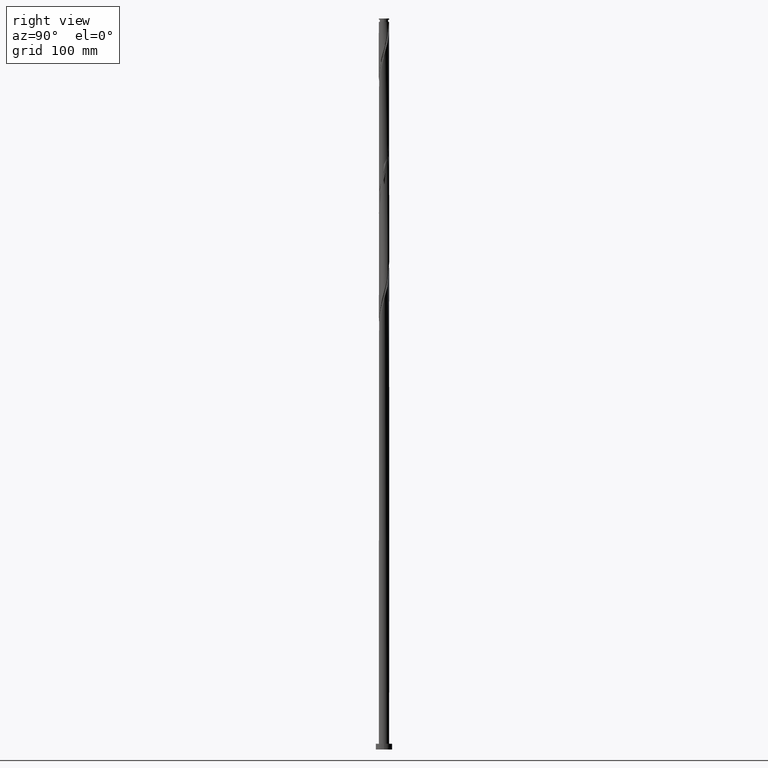
[diagram: clean part render]
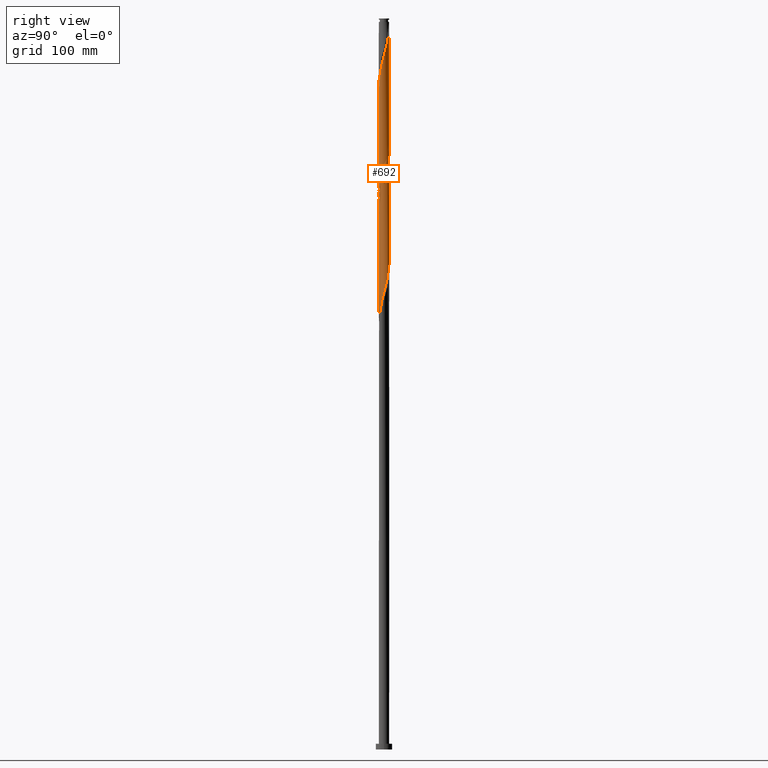
[diagram: same view with one face highlighted and labeled with its STEP entity id]
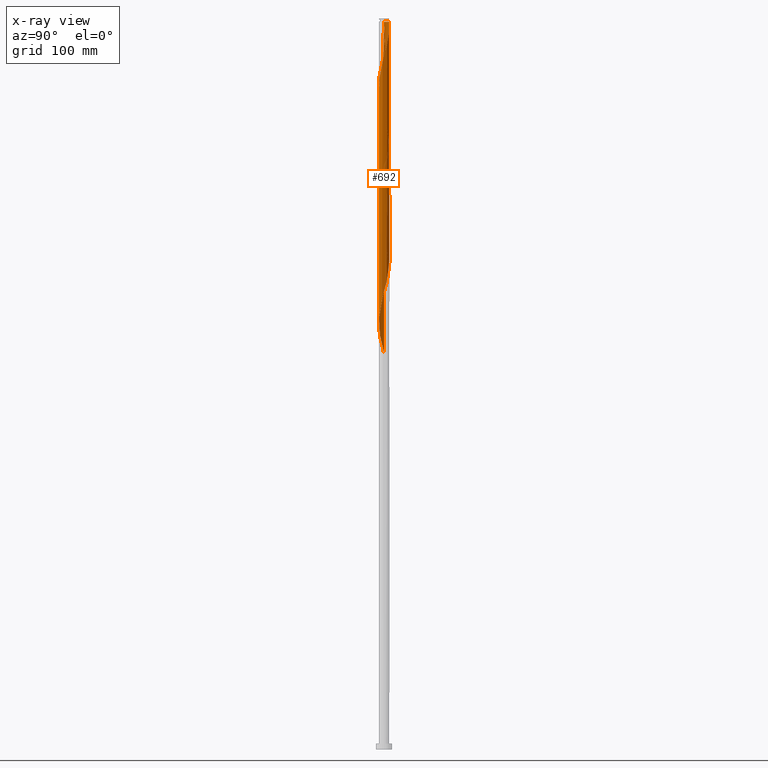
[diagram: x-ray of the same camera — body ghosted, the highlighted face saturated]
A machine part, right view. The second image highlights one B-rep face of the part: STEP entity #692.
The next image is the same camera in x-ray: the body ghosted, the highlighted face saturated — about 0% of this face is hidden behind the body in this view.
In plain terms, the highlighted cylindrical surface (bore or boss wall) has radius 4.5 mm, axis along (-0, -0, -1).
Its self-contained STEP definition (entity closure, byte-faithful):
#31 = CARTESIAN_POINT ( 'NONE',  ( 1.690576670250392599, 4.170365753984304646, 414.0181182535420703 ) ) ;
#41 = CARTESIAN_POINT ( 'NONE',  ( 1.560206006311765314, -4.220871618264250280, 478.8710594300127923 ) ) ;
#53 = CARTESIAN_POINT ( 'NONE',  ( -3.082925670266508433, -3.278043518870941142, 460.3416476653068798 ) ) ;
#65 = CARTESIAN_POINT ( 'NONE',  ( -2.779170205267875282, -3.563718652570988965, 461.8857653123656632 ) ) ;
#71 = CARTESIAN_POINT ( 'NONE',  ( 4.058908475432268403, 1.943003342267864531, 506.6651770770715757 ) ) ;
#76 = CARTESIAN_POINT ( 'NONE',  ( 3.632771918171209702, 2.655742493267495341, 404.7534123711891993 ) ) ;
#83 = VERTEX_POINT ( 'NONE', #1909 ) ;
#84 = CARTESIAN_POINT ( 'NONE',  ( -3.292086981555668590, 3.096133228787603553, 539.0916476653069367 ) ) ;
#94 = CARTESIAN_POINT ( 'NONE',  ( 4.499999999999999112, 0.1730303454945906205, 499.8479680744137568 ) ) ;
#95 = CARTESIAN_POINT ( 'NONE',  ( -3.548516457065029606, -2.767314755126113024, 556.0769417829541226 ) ) ;
#100 = CARTESIAN_POINT ( 'NONE',  ( 2.779170205267879279, -3.563718652570996515, 582.3269417829541226 ) ) ;
#101 = VERTEX_POINT ( 'NONE', #1543 ) ;
#109 = CARTESIAN_POINT ( 'NONE',  ( -4.428892876218122332, 0.8993250555363423437, 548.3563535476599782 ) ) ;
#110 = CARTESIAN_POINT ( 'NONE',  ( 3.386681135265150022, -2.992368385170899092, 585.4151770770720304 ) ) ;
#112 = CARTESIAN_POINT ( 'NONE',  ( -3.386681135265145581, -2.992368385170891543, 353.7975300182481533 ) ) ;
#114 = EDGE_CURVE ( 'NONE', #177, #1005, #632, .T. ) ;
#121 = ORIENTED_EDGE ( 'NONE', *, *, #114, .F. ) ;
#177 = VERTEX_POINT ( 'NONE', #1346 ) ;
#183 = CARTESIAN_POINT ( 'NONE',  ( 4.500000000000000000, 4.765459155473159646E-15, 499.2045623223540360 ) ) ;
#194 = CARTESIAN_POINT ( 'NONE',  ( -0.8954886933959659290, -4.409999999999997478, 469.6063535476599213 ) ) ;
#204 = CARTESIAN_POINT ( 'NONE',  ( -3.632771918171211478, -2.655742493267494009, 457.2534123711893130 ) ) ;
#211 = CARTESIAN_POINT ( 'NONE',  ( -4.500000000000006217, 1.762771725222034300E-15, 545.0081447729659203 ) ) ;
#214 = CARTESIAN_POINT ( 'NONE',  ( -2.428094086222673198, -3.788714704019091162, 463.4298829594246172 ) ) ;
#223 = CARTESIAN_POINT ( 'NONE',  ( -0.7580574095480138164, 4.435690359327320920, 423.2828241358951686 ) ) ;
#234 = CARTESIAN_POINT ( 'NONE',  ( 2.428094086222673642, 3.788714704019090718, 410.9298829594244467 ) ) ;
#235 = VERTEX_POINT ( 'NONE', #2022 ) ;
#240 = CARTESIAN_POINT ( 'NONE',  ( -1.169084651843906419, -4.365445995697824877, 566.8857653123659475 ) ) ;
#242 = CARTESIAN_POINT ( 'NONE',  ( 1.169084651843902423, -4.365445995697815995, 372.3269417829539520 ) ) ;
#255 = CARTESIAN_POINT ( 'NONE',  ( -2.779170205267875282, -3.563718652570988965, 356.8857653123657201 ) ) ;
#261 = CARTESIAN_POINT ( 'NONE',  ( -2.309223658791419442, 3.862316156618713858, 534.4592947241303591 ) ) ;
#268 = CARTESIAN_POINT ( 'NONE',  ( 1.304135373323316749, 4.327020752501417711, 520.5622359006009674 ) ) ;
#269 = CARTESIAN_POINT ( 'NONE',  ( 4.454693295585993695, -0.7613050024742795685, 594.6798829594246172 ) ) ;
#278 = CARTESIAN_POINT ( 'NONE',  ( 3.878862701077282704, -2.319116601364103136, 588.5034123711891425 ) ) ;
#295 = CARTESIAN_POINT ( 'NONE',  ( 0.000000000000000000, 0.000000000000000000, 630.0000000000000000 ) ) ;
#304 = ORIENTED_EDGE ( 'NONE', *, *, #1848, .T. ) ;
#307 = CARTESIAN_POINT ( 'NONE',  ( 2.979603469179439745, -3.372234150597171798, 485.0475300182480396 ) ) ;
#357 = CARTESIAN_POINT ( 'NONE',  ( 1.169084651843902423, -4.365445995697815995, 477.3269417829540657 ) ) ;
#363 = CARTESIAN_POINT ( 'NONE',  ( -4.473812990118687161, -0.4847652312669868957, 546.8122359006009674 ) ) ;
#366 = CARTESIAN_POINT ( 'NONE',  ( 2.667119956803213121, -3.648335072406740043, 483.5034123711893130 ) ) ;
#378 = CARTESIAN_POINT ( 'NONE',  ( -3.996588972981646393, 2.068157774697445550, 438.7240006064833437 ) ) ;
#385 =( BOUNDED_CURVE ( )  B_SPLINE_CURVE ( 2, ( #211, #1004, #363, #850, #862, #704, #1326, #1968, #95, #565, #1696, #419, #1059, #1675, #600, #240, #910, #1862, #1852, #1997, #1378, #441, #1228, #885, #1667, #100, #1185, #110, #1216, #278, #2023, #903, #1824, #269, #1842, #892, #575, #1536, #429, #1544, #1044, #410, #750, #1518, #399, #1370, #734, #761, #1389, #742, #1362, #1195, #1685, #2014, #1834 ),
 .UNSPECIFIED., .F., .T. ) 
 B_SPLINE_CURVE_WITH_KNOTS ( ( 3, 2, 2, 2, 2, 2, 2, 2, 2, 2, 2, 2, 2, 2, 2, 2, 2, 2, 2, 2, 2, 2, 2, 2, 2, 2, 2, 3 ),
 ( 0.5545293573162898282, 0.5588235294117647189, 0.5661764705882352811, 0.5735294117647058432, 0.5808823529411765163, 0.5882352941176471894, 0.5955882352941177516, 0.6029411764705884247, 0.6102941176470589868, 0.6176470588235295489, 0.6250000000000001110, 0.6323529411764707842, 0.6397058823529413463, 0.6470588235294119084, 0.6544117647058825815, 0.6617647058823531436, 0.6691176470588238168, 0.6764705882352943789, 0.6838235294117649410, 0.6911764705882356141, 0.6985294117647061762, 0.7058823529411767383, 0.7132352941176474115, 0.7205882352941179736, 0.7279411764705887578, 0.7352941176470593199, 0.7426470588235298820, 0.7500000000000004441 ),
 .UNSPECIFIED. ) 
 CURVE ( )  GEOMETRIC_REPRESENTATION_ITEM ( )  RATIONAL_B_SPLINE_CURVE ( ( 0.9072066346053333508, 0.9068261157890998847, 0.9090909090909716772, 0.9052128875410025977, 0.9090909090909716772, 0.9052128875410025977, 0.9090909090909716772, 0.9052128875410025977, 0.9090909090909716772, 0.9052128875410025977, 0.9090909090909716772, 0.9052128875410025977, 0.9090909090909716772, 0.9052128875410025977, 0.9090909090909716772, 0.9052128875410025977, 0.9090909090909716772, 0.9052128875410025977, 0.9090909090909716772, 0.9052128875410025977, 0.9090909090909716772, 0.9052128875410025977, 0.9090909090909716772, 0.9052128875410025977, 0.9090909090909716772, 0.9052128875410025977, 0.9090909090909716772, 0.9052128875410025977, 0.9090909090909716772, 0.9052128875410025977, 0.9090909090909716772, 0.9052128875410025977, 0.9090909090909716772, 0.9052128875410025977, 0.9090909090909716772, 0.9052128875410025977, 0.9090909090909716772, 0.9052128875410025977, 0.9090909090909716772, 0.9052128875410025977, 0.9090909090909716772, 0.9052128875410025977, 0.9090909090909716772, 0.9052128875410025977, 0.9090909090909716772, 0.9052128875410025977, 0.9090909090909716772, 0.9052128875410025977, 0.9090909090909716772, 0.9052128875410025977, 0.9090909090909716772, 0.9052128875410025977, 0.9090909090909716772, 0.9052128875410022646, 0.9090909090909720103 ) ) 
 REPRESENTATION_ITEM ( '' )  );
#390 = CARTESIAN_POINT ( 'NONE',  ( -1.560206006311764870, 4.220871618264250280, 426.3710594300129060 ) ) ;
#398 = CARTESIAN_POINT ( 'NONE',  ( 4.238954249787256323, 1.566890083171634585, 505.1210594300127354 ) ) ;
#399 = CARTESIAN_POINT ( 'NONE',  ( 2.979603469179447295, 3.372234150597175351, 611.6651770770716894 ) ) ;
#404 = CARTESIAN_POINT ( 'NONE',  ( 4.518733104019242219, -0.07020540699763129500, 393.9445888417775450 ) ) ;
#409 = CARTESIAN_POINT ( 'NONE',  ( -4.308562444803517799, 1.298572161733310137, 546.8122359006007400 ) ) ;
#410 = CARTESIAN_POINT ( 'NONE',  ( 3.804945932574387957, 2.438496281464617610, 607.0328241358954529 ) ) ;
#413 = CARTESIAN_POINT ( 'NONE',  ( -4.499999999999998224, -0.1730303454945718578, 342.3479680744136999 ) ) ;
#419 = CARTESIAN_POINT ( 'NONE',  ( -2.667119956803218006, -3.648335072406747148, 560.7092947241307002 ) ) ;
#422 = DIRECTION ( 'NONE',  ( -0.000000000000000000, -0.000000000000000000, -1.000000000000000000 ) ) ;
#428 = CARTESIAN_POINT ( 'NONE',  ( -0.3470301672521248770, 4.505934722956829397, 526.7387064888363284 ) ) ;
#429 = CARTESIAN_POINT ( 'NONE',  ( 4.308562444803525793, 1.298572161733309693, 602.4004711947187616 ) ) ;
#441 = CARTESIAN_POINT ( 'NONE',  ( 1.304135373323318303, -4.327020752501423040, 576.1504711947189890 ) ) ;
#446 = VERTEX_POINT ( 'NONE', #1706 ) ;
#458 = LINE ( 'NONE', #1381, #1963 ) ;
#473 = CARTESIAN_POINT ( 'NONE',  ( 4.500000000000001776, -0.2430899265566714984, 498.3006430903412820 ) ) ;
#525 = CARTESIAN_POINT ( 'NONE',  ( 4.308562444803518687, -1.298572161733309471, 389.3122359006009674 ) ) ;
#535 = CARTESIAN_POINT ( 'NONE',  ( -4.428892876218122332, 0.8993250555363423437, 443.3563535476599782 ) ) ;
#547 = CARTESIAN_POINT ( 'NONE',  ( -4.346823772686619236, -1.164097542822954967, 451.0769417829539520 ) ) ;
#557 = CARTESIAN_POINT ( 'NONE',  ( 2.077017967177472890, 4.013710755467192470, 412.4740006064834006 ) ) ;
#564 = CARTESIAN_POINT ( 'NONE',  ( -4.499999999999999112, -1.299670678765407391E-15, 551.7045623223539224 ) ) ;
#565 = CARTESIAN_POINT ( 'NONE',  ( -3.292086981555674363, -3.096133228787609770, 557.6210594300127923 ) ) ;
#567 = CARTESIAN_POINT ( 'NONE',  ( 4.454693295585983037, 0.7613050024742757937, 397.0328241358952255 ) ) ;
#574 = CARTESIAN_POINT ( 'NONE',  ( 4.500000000000000000, 4.765459155473158857E-15, 499.2045623223540360 ) ) ;
#575 = CARTESIAN_POINT ( 'NONE',  ( 4.473812990118688049, 0.4847652312669875063, 599.3122359006010811 ) ) ;
#587 = CARTESIAN_POINT ( 'NONE',  ( -2.428094086222673198, -3.788714704019091162, 358.4298829594245035 ) ) ;
#591 = CARTESIAN_POINT ( 'NONE',  ( -1.560206006311764870, 4.220871618264250280, 531.3710594300127923 ) ) ;
#594 = CARTESIAN_POINT ( 'NONE',  ( -0.8954886933959659290, -4.409999999999997478, 364.6063535476598645 ) ) ;
#600 = CARTESIAN_POINT ( 'NONE',  ( -1.560206006311768201, -4.220871618264257386, 565.3416476653068230 ) ) ;
#604 = CARTESIAN_POINT ( 'NONE',  ( -4.346823772686619236, -1.164097542822954967, 346.0769417829539520 ) ) ;
#607 =( BOUNDED_CURVE ( )  B_SPLINE_CURVE ( 2, ( #1134, #473, #1773, #988, #1621, #2049, #789, #1418, #1098, #1735, #307, #366, #1177, #1794, #41, #357, #1328, #1816, #1007, #1641, #194, #1970, #708, #1827, #214, #65, #53, #845, #204, #854, #835, #1978, #547, #1481, #1804, #1167, #696, #535, #682, #1490, #378, #1468, #1154, #1318, #997, #716, #1961, #1015, #390, #1651, #223, #1629, #867, #1029, #1500, #1340, #31, #557, #234, #1660, #877, #1510, #76, #726, #1351, #1988, #1310, #567, #1190, #404, #1040, #1951, #525, #1144, #1782, #1548, #1678, #1064, #1365, #738, #1690, #2000, #1856, #242, #1865, #913, #2037, #1711, #594, #1520, #2025, #1540, #587, #255, #1219, #112, #1393, #745, #906, #926, #604, #888, #1054, #413, #764 ),
 .UNSPECIFIED., .F., .T. ) 
 B_SPLINE_CURVE_WITH_KNOTS ( ( 3, 2, 2, 2, 2, 2, 2, 2, 2, 2, 2, 2, 2, 2, 2, 2, 2, 2, 2, 2, 2, 2, 2, 2, 2, 2, 2, 2, 2, 2, 2, 2, 2, 2, 2, 2, 2, 2, 2, 2, 2, 2, 2, 2, 2, 2, 2, 2, 2, 2, 2, 2, 3 ),
 ( 0.5545293573162900502, 0.5588235294117647189, 0.5661764705882352811, 0.5735294117647058432, 0.5808823529411765163, 0.5882352941176470784, 0.5955882352941176405, 0.6029411764705882026, 0.6102941176470588758, 0.6176470588235294379, 0.6250000000000000000, 0.6323529411764705621, 0.6397058823529411242, 0.6470588235294117974, 0.6544117647058823595, 0.6617647058823529216, 0.6691176470588234837, 0.6764705882352941568, 0.6838235294117647189, 0.6911764705882352811, 0.6985294117647058432, 0.7058823529411765163, 0.7132352941176470784, 0.7205882352941176405, 0.7279411764705882026, 0.7352941176470588758, 0.7426470588235294379, 0.7500000000000000000, 0.7573529411764705621, 0.7647058823529411242, 0.7720588235294117974, 0.7794117647058823595, 0.7867647058823529216, 0.7941176470588234837, 0.8014705882352941568, 0.8088235294117647189, 0.8161764705882352811, 0.8235294117647058432, 0.8308823529411765163, 0.8382352941176470784, 0.8455882352941176405, 0.8529411764705882026, 0.8602941176470588758, 0.8676470588235294379, 0.8750000000000000000, 0.8823529411764705621, 0.8897058823529411242, 0.8970588235294117974, 0.9044117647058823595, 0.9117647058823529216, 0.9191176470588233727, 0.9264705882352941568, 0.9295293573162903833 ),
 .UNSPECIFIED. ) 
 CURVE ( )  GEOMETRIC_REPRESENTATION_ITEM ( )  RATIONAL_B_SPLINE_CURVE ( ( 0.9072066346053269115, 0.9068261157890937785, 0.9090909090909653489, 0.9052128875409962694, 0.9090909090909653489, 0.9052128875409962694, 0.9090909090909653489, 0.9052128875409962694, 0.9090909090909653489, 0.9052128875409962694, 0.9090909090909653489, 0.9052128875409962694, 0.9090909090909653489, 0.9052128875409962694, 0.9090909090909653489, 0.9052128875409962694, 0.9090909090909653489, 0.9052128875409962694, 0.9090909090909653489, 0.9052128875409962694, 0.9090909090909653489, 0.9052128875409962694, 0.9090909090909653489, 0.9052128875409962694, 0.9090909090909653489, 0.9052128875409962694, 0.9090909090909653489, 0.9052128875409962694, 0.9090909090909653489, 0.9052128875409962694, 0.9090909090909653489, 0.9052128875409962694, 0.9090909090909653489, 0.9052128875409962694, 0.9090909090909653489, 0.9052128875409962694, 0.9090909090909653489, 0.9052128875409962694, 0.9090909090909653489, 0.9052128875409962694, 0.9090909090909653489, 0.9052128875409962694, 0.9090909090909653489, 0.9052128875409962694, 0.9090909090909653489, 0.9052128875409962694, 0.9090909090909653489, 0.9052128875409962694, 0.9090909090909653489, 0.9052128875409962694, 0.9090909090909653489, 0.9052128875409962694, 0.9090909090909653489, 0.9052128875409962694, 0.9090909090909653489, 0.9052128875409962694, 0.9090909090909653489, 0.9052128875409962694, 0.9090909090909653489, 0.9052128875409962694, 0.9090909090909653489, 0.9052128875409962694, 0.9090909090909653489, 0.9052128875409962694, 0.9090909090909653489, 0.9052128875409962694, 0.9090909090909653489, 0.9052128875409962694, 0.9090909090909653489, 0.9052128875409962694, 0.9090909090909653489, 0.9052128875409962694, 0.9090909090909653489, 0.9052128875409962694, 0.9090909090909653489, 0.9052128875409962694, 0.9090909090909653489, 0.9052128875409962694, 0.9090909090909653489, 0.9052128875409962694, 0.9090909090909653489, 0.9052128875409962694, 0.9090909090909653489, 0.9052128875409962694, 0.9090909090909653489, 0.9052128875409962694, 0.9090909090909653489, 0.9052128875409962694, 0.9090909090909653489, 0.9052128875409962694, 0.9090909090909653489, 0.9052128875409962694, 0.9090909090909653489, 0.9052128875409962694, 0.9090909090909653489, 0.9052128875409962694, 0.9090909090909653489, 0.9052128875409962694, 0.9090909090909653489, 0.9052128875409962694, 0.9090909090909653489, 0.9052128875409962694, 0.9090909090909653489, 0.9074776808428677288, 0.9072066346053268004 ) ) 
 REPRESENTATION_ITEM ( '' )  );
#615 = LINE ( 'NONE', #1074, #1656 ) ;
#629 = CARTESIAN_POINT ( 'NONE',  ( 0.000000000000000000, 0.000000000000000000, 627.1063535476598645 ) ) ;
#632 =( BOUNDED_CURVE ( )  B_SPLINE_CURVE ( 2, ( #564, #874, #1058, #109, #409, #2012, #1684, #1215, #1361, #84, #2004, #1695, #261, #902, #591, #1535, #1505, #428, #1517, #1043, #760, #268, #1052, #1204, #1184, #884, #733, #891, #1996, #909, #71, #398, #1388, #1674, #1841, #94, #574 ),
 .UNSPECIFIED., .F., .T. ) 
 B_SPLINE_CURVE_WITH_KNOTS ( ( 3, 2, 2, 2, 2, 2, 2, 2, 2, 2, 2, 2, 2, 2, 2, 2, 2, 2, 3 ),
 ( 0.4295293573162903833, 0.4338235294117647189, 0.4411764705882352811, 0.4485294117647058987, 0.4558823529411764608, 0.4632352941176470784, 0.4705882352941176405, 0.4779411764705882582, 0.4852941176470588203, 0.4926470588235294379, 0.5000000000000000000, 0.5073529411764705621, 0.5147058823529411242, 0.5220588235294117974, 0.5294117647058823595, 0.5367647058823529216, 0.5441176470588234837, 0.5514705882352941568, 0.5545293573162900502 ),
 .UNSPECIFIED. ) 
 CURVE ( )  GEOMETRIC_REPRESENTATION_ITEM ( )  RATIONAL_B_SPLINE_CURVE ( ( 0.9072066346053269115, 0.9068261157890938895, 0.9090909090909653489, 0.9052128875409962694, 0.9090909090909653489, 0.9052128875409962694, 0.9090909090909653489, 0.9052128875409962694, 0.9090909090909653489, 0.9052128875409962694, 0.9090909090909653489, 0.9052128875409962694, 0.9090909090909653489, 0.9052128875409962694, 0.9090909090909653489, 0.9052128875409962694, 0.9090909090909653489, 0.9052128875409962694, 0.9090909090909653489, 0.9052128875409962694, 0.9090909090909653489, 0.9052128875409962694, 0.9090909090909653489, 0.9052128875409962694, 0.9090909090909653489, 0.9052128875409962694, 0.9090909090909653489, 0.9052128875409962694, 0.9090909090909653489, 0.9052128875409962694, 0.9090909090909653489, 0.9052128875409962694, 0.9090909090909653489, 0.9052128875409962694, 0.9090909090909653489, 0.9074776808428678398, 0.9072066346053269115 ) ) 
 REPRESENTATION_ITEM ( '' )  );
#682 = CARTESIAN_POINT ( 'NONE',  ( -4.308562444803517799, 1.298572161733310137, 441.8122359006010242 ) ) ;
#692 = ADVANCED_FACE ( 'NONE', ( #1725 ), #732, .T. ) ;
#696 = CARTESIAN_POINT ( 'NONE',  ( -4.473812990118680055, 0.4847652312669873398, 444.9004711947185911 ) ) ;
#704 = CARTESIAN_POINT ( 'NONE',  ( -4.188232013388924813, -1.697819267930281040, 551.4445888417776587 ) ) ;
#708 = CARTESIAN_POINT ( 'NONE',  ( -1.690576670250394153, -4.170365753984304646, 466.5181182535422408 ) ) ;
#716 = CARTESIAN_POINT ( 'NONE',  ( -2.667119956803212677, 3.648335072406740931, 431.0034123711893699 ) ) ;
#726 = CARTESIAN_POINT ( 'NONE',  ( 3.878862701077275155, 2.319116601364099584, 403.2092947241305865 ) ) ;
#732 = CYLINDRICAL_SURFACE ( 'NONE', #1590, 4.500000000000000000 ) ;
#733 = CARTESIAN_POINT ( 'NONE',  ( 3.082925670266510654, 3.278043518870938478, 512.8416476653069367 ) ) ;
#734 = CARTESIAN_POINT ( 'NONE',  ( 2.309223658791424327, 3.862316156618720964, 614.7534123711892562 ) ) ;
#738 = CARTESIAN_POINT ( 'NONE',  ( 2.667119956803213121, -3.648335072406740043, 378.5034123711893130 ) ) ;
#742 = CARTESIAN_POINT ( 'NONE',  ( 1.169084651843904865, 4.365445995697824877, 619.3857653123656064 ) ) ;
#745 = CARTESIAN_POINT ( 'NONE',  ( -3.878862701077276487, -2.319116601364098251, 350.7092947241305296 ) ) ;
#750 = CARTESIAN_POINT ( 'NONE',  ( 3.548516457065029606, 2.767314755126114356, 608.5769417829541226 ) ) ;
#760 = CARTESIAN_POINT ( 'NONE',  ( 0.8954886933959665951, 4.409999999999997478, 522.1063535476598645 ) ) ;
#761 = CARTESIAN_POINT ( 'NONE',  ( 1.951327360779632869, 4.076297240830694335, 616.2975300182481533 ) ) ;
#762 = ORIENTED_EDGE ( 'NONE', *, *, #1904, .F. ) ;
#764 = CARTESIAN_POINT ( 'NONE',  ( -4.500000000000000000, -4.989540306984437354E-15, 341.7045623223539792 ) ) ;
#772 = VECTOR ( 'NONE', #1476, 1000.000000000000000 ) ;
#789 = CARTESIAN_POINT ( 'NONE',  ( 3.996588972981645504, -2.068157774697447771, 491.2240006064832869 ) ) ;
#824 = DIRECTION ( 'NONE',  ( -0.000000000000000000, -0.000000000000000000, -1.000000000000000000 ) ) ;
#835 = CARTESIAN_POINT ( 'NONE',  ( -4.058908475432268403, -1.943003342267865197, 454.1651770770715189 ) ) ;
#845 = CARTESIAN_POINT ( 'NONE',  ( -3.386681135265145581, -2.992368385170891543, 458.7975300182480396 ) ) ;
#850 = CARTESIAN_POINT ( 'NONE',  ( -4.428892876218131214, -0.8993250555363426768, 548.3563535476600919 ) ) ;
#854 = CARTESIAN_POINT ( 'NONE',  ( -3.878862701077276487, -2.319116601364098251, 455.7092947241305865 ) ) ;
#862 = CARTESIAN_POINT ( 'NONE',  ( -4.308562444803525793, -1.298572161733311026, 549.9004711947187616 ) ) ;
#867 = CARTESIAN_POINT ( 'NONE',  ( 0.06990592310824471356, 4.499456985227704209, 420.1945888417775450 ) ) ;
#874 = CARTESIAN_POINT ( 'NONE',  ( -4.500000000000000000, 0.2430899265566916767, 550.8006430903411683 ) ) ;
#877 = CARTESIAN_POINT ( 'NONE',  ( 3.082925670266510654, 3.278043518870938478, 407.8416476653068230 ) ) ;
#884 = CARTESIAN_POINT ( 'NONE',  ( 2.779170205267873950, 3.563718652570990297, 514.3857653123658338 ) ) ;
#885 = CARTESIAN_POINT ( 'NONE',  ( 2.077017967177474667, -4.013710755467202240, 579.2387064888364421 ) ) ;
#888 = CARTESIAN_POINT ( 'NONE',  ( -4.454693295585984814, -0.7613050024742772370, 344.5328241358952823 ) ) ;
#891 = CARTESIAN_POINT ( 'NONE',  ( 3.386681135265146025, 2.992368385170890654, 511.2975300182480964 ) ) ;
#892 = CARTESIAN_POINT ( 'NONE',  ( 4.518733104019251101, 0.07020540699763319625, 597.7681182535424114 ) ) ;
#902 = CARTESIAN_POINT ( 'NONE',  ( -1.951327360779627762, 4.076297240830688118, 532.9151770770716894 ) ) ;
#903 = CARTESIAN_POINT ( 'NONE',  ( 4.238954249787265205, -1.566890083171638803, 591.5916476653070504 ) ) ;
#906 = CARTESIAN_POINT ( 'NONE',  ( -4.058908475432268403, -1.943003342267865197, 349.1651770770715757 ) ) ;
#909 = CARTESIAN_POINT ( 'NONE',  ( 3.878862701077275155, 2.319116601364099584, 508.2092947241303591 ) ) ;
#910 = CARTESIAN_POINT ( 'NONE',  ( -0.7580574095480158148, -4.435690359327330690, 568.4298829594246172 ) ) ;
#913 = CARTESIAN_POINT ( 'NONE',  ( 0.3470301672521248770, -4.505934722956829397, 369.2387064888362715 ) ) ;
#926 = CARTESIAN_POINT ( 'NONE',  ( -4.238954249787257211, -1.566890083171635029, 347.6210594300128491 ) ) ;
#988 = CARTESIAN_POINT ( 'NONE',  ( 4.428892876218122332, -0.8993250555363428989, 495.8563535476599213 ) ) ;
#997 = CARTESIAN_POINT ( 'NONE',  ( -2.979603469179440189, 3.372234150597171354, 432.5475300182480396 ) ) ;
#1004 = CARTESIAN_POINT ( 'NONE',  ( -4.500000000000010658, -0.2430899265566582312, 545.9120640049785607 ) ) ;
#1005 = VERTEX_POINT ( 'NONE', #183 ) ;
#1007 = CARTESIAN_POINT ( 'NONE',  ( -0.06990592310824564337, -4.499456985227704209, 472.6945888417773745 ) ) ;
#1011 = EDGE_CURVE ( 'NONE', #101, #83, #1324, .T. ) ;
#1015 = CARTESIAN_POINT ( 'NONE',  ( -1.951327360779627762, 4.076297240830688118, 427.9151770770716325 ) ) ;
#1029 = CARTESIAN_POINT ( 'NONE',  ( 0.4868420134686145540, 4.492979247498578133, 418.6504711947186479 ) ) ;
#1040 = CARTESIAN_POINT ( 'NONE',  ( 4.473812990118680055, -0.4847652312669890051, 392.4004711947187047 ) ) ;
#1043 = CARTESIAN_POINT ( 'NONE',  ( 0.4868420134686145540, 4.492979247498578133, 523.6504711947186479 ) ) ;
#1044 = CARTESIAN_POINT ( 'NONE',  ( 3.996588972981654386, 2.068157774697448659, 605.4887064888364421 ) ) ;
#1046 = DIRECTION ( 'NONE',  ( -0.000000000000000000, -0.000000000000000000, -1.000000000000000000 ) ) ;
#1052 = CARTESIAN_POINT ( 'NONE',  ( 1.690576670250392599, 4.170365753984304646, 519.0181182535422977 ) ) ;
#1054 = CARTESIAN_POINT ( 'NONE',  ( -4.486713199802609964, -0.3455497977383226726, 342.9887064888362147 ) ) ;
#1058 = CARTESIAN_POINT ( 'NONE',  ( -4.473812990118680055, 0.4847652312669873398, 549.9004711947185342 ) ) ;
#1059 = CARTESIAN_POINT ( 'NONE',  ( -2.309223658791425660, -3.862316156618718743, 562.2534123711892562 ) ) ;
#1064 = CARTESIAN_POINT ( 'NONE',  ( 3.292086981555668590, -3.096133228787604441, 381.5916476653069367 ) ) ;
#1074 = CARTESIAN_POINT ( 'NONE',  ( 4.500000000000000000, 5.510910596163088569E-16, 630.0000000000000000 ) ) ;
#1098 = CARTESIAN_POINT ( 'NONE',  ( 3.548516457065025165, -2.767314755126107695, 488.1357653123656064 ) ) ;
#1134 = CARTESIAN_POINT ( 'NONE',  ( 4.500000000000000000, 4.765459155473158857E-15, 499.2045623223540360 ) ) ;
#1144 = CARTESIAN_POINT ( 'NONE',  ( 4.188232013388916819, -1.697819267930276821, 387.7681182535422408 ) ) ;
#1154 = CARTESIAN_POINT ( 'NONE',  ( -3.548516457065023832, 2.767314755126108583, 435.6357653123657769 ) ) ;
#1164 = ORIENTED_EDGE ( 'NONE', *, *, #1331, .F. ) ;
#1167 = CARTESIAN_POINT ( 'NONE',  ( -4.518733104019242219, 0.07020540699763173909, 446.4445888417774881 ) ) ;
#1177 = CARTESIAN_POINT ( 'NONE',  ( 2.309223658791419442, -3.862316156618713858, 481.9592947241304159 ) ) ;
#1184 = CARTESIAN_POINT ( 'NONE',  ( 2.428094086222673642, 3.788714704019090718, 515.9298829594243898 ) ) ;
#1185 = CARTESIAN_POINT ( 'NONE',  ( 3.082925670266514651, -3.278043518870946027, 583.8710594300129060 ) ) ;
#1190 = CARTESIAN_POINT ( 'NONE',  ( 4.486713199802609964, 0.3455497977383223396, 395.4887064888363852 ) ) ;
#1193 = DIRECTION ( 'NONE',  ( -0.000000000000000000, -0.000000000000000000, -1.000000000000000000 ) ) ;
#1195 = CARTESIAN_POINT ( 'NONE',  ( 0.3470301672521278191, 4.505934722956835614, 622.4740006064832869 ) ) ;
#1198 = EDGE_CURVE ( 'NONE', #1005, #1507, #607, .T. ) ;
#1204 = CARTESIAN_POINT ( 'NONE',  ( 2.077017967177472890, 4.013710755467192470, 517.4740006064835143 ) ) ;
#1215 = CARTESIAN_POINT ( 'NONE',  ( -3.804945932574380407, 2.438496281464615389, 542.1798829594246172 ) ) ;
#1216 = CARTESIAN_POINT ( 'NONE',  ( 3.632771918171216807, -2.655742493267499782, 586.9592947241305865 ) ) ;
#1219 = CARTESIAN_POINT ( 'NONE',  ( -3.082925670266508433, -3.278043518870941142, 355.3416476653068798 ) ) ;
#1221 = AXIS2_PLACEMENT_3D ( 'NONE', #629, #824, #1299 ) ;
#1228 = CARTESIAN_POINT ( 'NONE',  ( 1.690576670250395930, -4.170365753984312640, 577.6945888417775450 ) ) ;
#1299 = DIRECTION ( 'NONE',  ( -1.000000000000000000, 0.000000000000000000, 0.000000000000000000 ) ) ;
#1310 = CARTESIAN_POINT ( 'NONE',  ( 4.346823772686621012, 1.164097542822956743, 398.5769417829539520 ) ) ;
#1318 = CARTESIAN_POINT ( 'NONE',  ( -3.292086981555668590, 3.096133228787603553, 434.0916476653068798 ) ) ;
#1324 = CIRCLE ( 'NONE', #1221, 4.499999999999936051 ) ;
#1326 = CARTESIAN_POINT ( 'NONE',  ( -3.996588972981654386, -2.068157774697449991, 552.9887064888362147 ) ) ;
#1328 = CARTESIAN_POINT ( 'NONE',  ( 0.7580574095480144825, -4.435690359327320920, 475.7828241358951118 ) ) ;
#1331 = EDGE_CURVE ( 'NONE', #446, #1005, #615, .T. ) ;
#1340 = CARTESIAN_POINT ( 'NONE',  ( 1.304135373323316749, 4.327020752501417711, 415.5622359006010242 ) ) ;
#1346 = CARTESIAN_POINT ( 'NONE',  ( -4.499999999999999112, -1.299670678765407194E-15, 551.7045623223539224 ) ) ;
#1347 = CARTESIAN_POINT ( 'NONE',  ( -4.500000000000000000, 0.000000000000000000, 630.0000000000000000 ) ) ;
#1351 = CARTESIAN_POINT ( 'NONE',  ( 4.058908475432268403, 1.943003342267864531, 401.6651770770715757 ) ) ;
#1361 = CARTESIAN_POINT ( 'NONE',  ( -3.548516457065023832, 2.767314755126108583, 540.6357653123657201 ) ) ;
#1362 = CARTESIAN_POINT ( 'NONE',  ( 0.7580574095480161478, 4.435690359327330690, 620.9298829594247309 ) ) ;
#1365 = CARTESIAN_POINT ( 'NONE',  ( 2.979603469179439745, -3.372234150597171798, 380.0475300182480964 ) ) ;
#1370 = CARTESIAN_POINT ( 'NONE',  ( 2.667119956803216674, 3.648335072406747592, 613.2092947241307002 ) ) ;
#1371 = EDGE_LOOP ( 'NONE', ( #1998, #1496, #762, #304, #1522, #1164, #1867, #121 ) ) ;
#1378 = CARTESIAN_POINT ( 'NONE',  ( 0.8954886933959658180, -4.410000000000003695, 574.6063535476598645 ) ) ;
#1381 = CARTESIAN_POINT ( 'NONE',  ( -4.500000000000000000, 0.000000000000000000, 630.0000000000000000 ) ) ;
#1388 = CARTESIAN_POINT ( 'NONE',  ( 4.346823772686621012, 1.164097542822956743, 503.5769417829538952 ) ) ;
#1389 = CARTESIAN_POINT ( 'NONE',  ( 1.560206006311770421, 4.220871618264257386, 617.8416476653069367 ) ) ;
#1393 = CARTESIAN_POINT ( 'NONE',  ( -3.632771918171211478, -2.655742493267494009, 352.2534123711892562 ) ) ;
#1418 = CARTESIAN_POINT ( 'NONE',  ( 3.804945932574380407, -2.438496281464615389, 489.6798829594245603 ) ) ;
#1425 = EDGE_CURVE ( 'NONE', #101, #177, #458, .T. ) ;
#1468 = CARTESIAN_POINT ( 'NONE',  ( -3.804945932574380407, 2.438496281464615389, 437.1798829594245603 ) ) ;
#1476 = DIRECTION ( 'NONE',  ( -0.000000000000000000, -0.000000000000000000, -1.000000000000000000 ) ) ;
#1481 = CARTESIAN_POINT ( 'NONE',  ( -4.454693295585984814, -0.7613050024742772370, 449.5328241358952823 ) ) ;
#1490 = CARTESIAN_POINT ( 'NONE',  ( -4.188232013388915043, 1.697819267930278375, 440.2681182535421840 ) ) ;
#1496 = ORIENTED_EDGE ( 'NONE', *, *, #1011, .T. ) ;
#1500 = CARTESIAN_POINT ( 'NONE',  ( 0.8954886933959665951, 4.409999999999997478, 417.1063535476598645 ) ) ;
#1505 = CARTESIAN_POINT ( 'NONE',  ( -0.7580574095480138164, 4.435690359327320920, 528.2828241358952255 ) ) ;
#1507 = VERTEX_POINT ( 'NONE', #1760 ) ;
#1510 = CARTESIAN_POINT ( 'NONE',  ( 3.386681135265146025, 2.992368385170890654, 406.2975300182480396 ) ) ;
#1517 = CARTESIAN_POINT ( 'NONE',  ( 0.06990592310824471356, 4.499456985227704209, 525.1945888417775450 ) ) ;
#1518 = CARTESIAN_POINT ( 'NONE',  ( 3.292086981555674363, 3.096133228787609326, 610.1210594300129060 ) ) ;
#1520 = CARTESIAN_POINT ( 'NONE',  ( -1.304135373323316083, -4.327020752501417711, 363.0622359006009674 ) ) ;
#1522 = ORIENTED_EDGE ( 'NONE', *, *, #1198, .F. ) ;
#1535 = CARTESIAN_POINT ( 'NONE',  ( -1.169084651843902867, 4.365445995697816883, 529.8269417829538952 ) ) ;
#1536 = CARTESIAN_POINT ( 'NONE',  ( 4.428892876218131214, 0.8993250555363421217, 600.8563535476600919 ) ) ;
#1540 = CARTESIAN_POINT ( 'NONE',  ( -2.077017967177472890, -4.013710755467193358, 359.9740006064834574 ) ) ;
#1543 = CARTESIAN_POINT ( 'NONE',  ( -4.499999999999936051, 0.000000000000000000, 627.1063535476598645 ) ) ;
#1544 = CARTESIAN_POINT ( 'NONE',  ( 4.188232013388924813, 1.697819267930281484, 603.9445888417775450 ) ) ;
#1548 = CARTESIAN_POINT ( 'NONE',  ( 3.804945932574380407, -2.438496281464615389, 384.6798829594246172 ) ) ;
#1590 = AXIS2_PLACEMENT_3D ( 'NONE', #295, #1193, #2027 ) ;
#1621 = CARTESIAN_POINT ( 'NONE',  ( 4.308562444803518687, -1.298572161733309471, 494.3122359006009106 ) ) ;
#1629 = CARTESIAN_POINT ( 'NONE',  ( -0.3470301672521248770, 4.505934722956829397, 421.7387064888364421 ) ) ;
#1641 = CARTESIAN_POINT ( 'NONE',  ( -0.4868420134686142209, -4.492979247498578133, 471.1504711947187047 ) ) ;
#1651 = CARTESIAN_POINT ( 'NONE',  ( -1.169084651843902867, 4.365445995697816883, 424.8269417829539520 ) ) ;
#1656 = VECTOR ( 'NONE', #1046, 1000.000000000000000 ) ;
#1660 = CARTESIAN_POINT ( 'NONE',  ( 2.779170205267873950, 3.563718652570990297, 409.3857653123658338 ) ) ;
#1667 = CARTESIAN_POINT ( 'NONE',  ( 2.428094086222677195, -3.788714704019096935, 580.7828241358953392 ) ) ;
#1674 = CARTESIAN_POINT ( 'NONE',  ( 4.454693295585983037, 0.7613050024742757937, 502.0328241358951118 ) ) ;
#1675 = CARTESIAN_POINT ( 'NONE',  ( -1.951327360779631981, -4.076297240830694335, 563.7975300182482670 ) ) ;
#1678 = CARTESIAN_POINT ( 'NONE',  ( 3.548516457065025165, -2.767314755126107695, 383.1357653123657769 ) ) ;
#1684 = CARTESIAN_POINT ( 'NONE',  ( -3.996588972981646393, 2.068157774697445550, 543.7240006064834006 ) ) ;
#1685 = CARTESIAN_POINT ( 'NONE',  ( -0.06990592310824540745, 4.499456985227711314, 624.0181182535424114 ) ) ;
#1690 = CARTESIAN_POINT ( 'NONE',  ( 2.309223658791419442, -3.862316156618713858, 376.9592947241305296 ) ) ;
#1695 = CARTESIAN_POINT ( 'NONE',  ( -2.667119956803212677, 3.648335072406740931, 536.0034123711893699 ) ) ;
#1696 = CARTESIAN_POINT ( 'NONE',  ( -2.979603469179447295, -3.372234150597175795, 559.1651770770714620 ) ) ;
#1706 = CARTESIAN_POINT ( 'NONE',  ( 4.500000000000000000, 5.510910596163088569E-16, 627.1063535476598645 ) ) ;
#1711 = CARTESIAN_POINT ( 'NONE',  ( -0.4868420134686142209, -4.492979247498578133, 366.1504711947187047 ) ) ;
#1725 = FACE_OUTER_BOUND ( 'NONE', #1371, .T. ) ;
#1735 = CARTESIAN_POINT ( 'NONE',  ( 3.292086981555668590, -3.096133228787604441, 486.5916476653069367 ) ) ;
#1760 = CARTESIAN_POINT ( 'NONE',  ( -4.500000000000000000, -4.989540306984436565E-15, 341.7045623223539792 ) ) ;
#1773 = CARTESIAN_POINT ( 'NONE',  ( 4.473812990118680055, -0.4847652312669890051, 497.4004711947186479 ) ) ;
#1782 = CARTESIAN_POINT ( 'NONE',  ( 3.996588972981645504, -2.068157774697447771, 386.2240006064834574 ) ) ;
#1794 = CARTESIAN_POINT ( 'NONE',  ( 1.951327360779626874, -4.076297240830689006, 480.4151770770715757 ) ) ;
#1801 = LINE ( 'NONE', #1347, #772 ) ;
#1804 = CARTESIAN_POINT ( 'NONE',  ( -4.486713199802609964, -0.3455497977383226726, 447.9887064888363284 ) ) ;
#1816 = CARTESIAN_POINT ( 'NONE',  ( 0.3470301672521248770, -4.505934722956829397, 474.2387064888363852 ) ) ;
#1824 = CARTESIAN_POINT ( 'NONE',  ( 4.346823772686629006, -1.164097542822956965, 593.1357653123657201 ) ) ;
#1827 = CARTESIAN_POINT ( 'NONE',  ( -2.077017967177472890, -4.013710755467193358, 464.9740006064834006 ) ) ;
#1834 = CARTESIAN_POINT ( 'NONE',  ( -0.8954886933959226303, 4.409999999999953957, 627.1063535476597508 ) ) ;
#1841 = CARTESIAN_POINT ( 'NONE',  ( 4.486713199802609964, 0.3455497977383223396, 500.4887064888363852 ) ) ;
#1842 = CARTESIAN_POINT ( 'NONE',  ( 4.486713199802618846, -0.3455497977383251706, 596.2240006064835143 ) ) ;
#1848 = EDGE_CURVE ( 'NONE', #235, #1507, #1801, .T. ) ;
#1852 = CARTESIAN_POINT ( 'NONE',  ( 0.06990592310824401967, -4.499456985227711314, 571.5181182535424114 ) ) ;
#1856 = CARTESIAN_POINT ( 'NONE',  ( 1.560206006311765314, -4.220871618264250280, 373.8710594300127923 ) ) ;
#1862 = CARTESIAN_POINT ( 'NONE',  ( -0.3470301672521269865, -4.505934722956835614, 569.9740006064836280 ) ) ;
#1865 = CARTESIAN_POINT ( 'NONE',  ( 0.7580574095480144825, -4.435690359327320920, 370.7828241358951686 ) ) ;
#1867 = ORIENTED_EDGE ( 'NONE', *, *, #1331, .T. ) ;
#1904 = EDGE_CURVE ( 'NONE', #235, #83, #385, .T. ) ;
#1909 = CARTESIAN_POINT ( 'NONE',  ( -0.8954886933959226303, 4.409999999999954845, 627.1063535476597508 ) ) ;
#1951 = CARTESIAN_POINT ( 'NONE',  ( 4.428892876218122332, -0.8993250555363428989, 390.8563535476599782 ) ) ;
#1961 = CARTESIAN_POINT ( 'NONE',  ( -2.309223658791419442, 3.862316156618713858, 429.4592947241304159 ) ) ;
#1963 = VECTOR ( 'NONE', #422, 1000.000000000000000 ) ;
#1968 = CARTESIAN_POINT ( 'NONE',  ( -3.804945932574387513, -2.438496281464618498, 554.5328241358952255 ) ) ;
#1970 = CARTESIAN_POINT ( 'NONE',  ( -1.304135373323316083, -4.327020752501417711, 468.0622359006010242 ) ) ;
#1978 = CARTESIAN_POINT ( 'NONE',  ( -4.238954249787257211, -1.566890083171635029, 452.6210594300128491 ) ) ;
#1988 = CARTESIAN_POINT ( 'NONE',  ( 4.238954249787256323, 1.566890083171634585, 400.1210594300127923 ) ) ;
#1996 = CARTESIAN_POINT ( 'NONE',  ( 3.632771918171209702, 2.655742493267495341, 509.7534123711893130 ) ) ;
#1997 = CARTESIAN_POINT ( 'NONE',  ( 0.4868420134686154976, -4.492979247498587902, 573.0622359006010811 ) ) ;
#1998 = ORIENTED_EDGE ( 'NONE', *, *, #1425, .F. ) ;
#2000 = CARTESIAN_POINT ( 'NONE',  ( 1.951327360779626874, -4.076297240830689006, 375.4151770770717462 ) ) ;
#2004 = CARTESIAN_POINT ( 'NONE',  ( -2.979603469179440189, 3.372234150597171354, 537.5475300182480396 ) ) ;
#2012 = CARTESIAN_POINT ( 'NONE',  ( -4.188232013388915043, 1.697819267930278375, 545.2681182535422977 ) ) ;
#2014 = CARTESIAN_POINT ( 'NONE',  ( -0.4868420134686402556, 4.492979247498587014, 625.5622359006010811 ) ) ;
#2022 = CARTESIAN_POINT ( 'NONE',  ( -4.500000000000006217, 1.762771725222034498E-15, 545.0081447729659203 ) ) ;
#2023 = CARTESIAN_POINT ( 'NONE',  ( 4.058908475432274621, -1.943003342267870304, 590.0475300182481533 ) ) ;
#2025 = CARTESIAN_POINT ( 'NONE',  ( -1.690576670250394153, -4.170365753984304646, 361.5181182535421271 ) ) ;
#2027 = DIRECTION ( 'NONE',  ( -1.000000000000000000, 0.000000000000000000, 0.000000000000000000 ) ) ;
#2037 = CARTESIAN_POINT ( 'NONE',  ( -0.06990592310824564337, -4.499456985227704209, 367.6945888417774313 ) ) ;
#2049 = CARTESIAN_POINT ( 'NONE',  ( 4.188232013388916819, -1.697819267930276821, 492.7681182535423545 ) ) ;